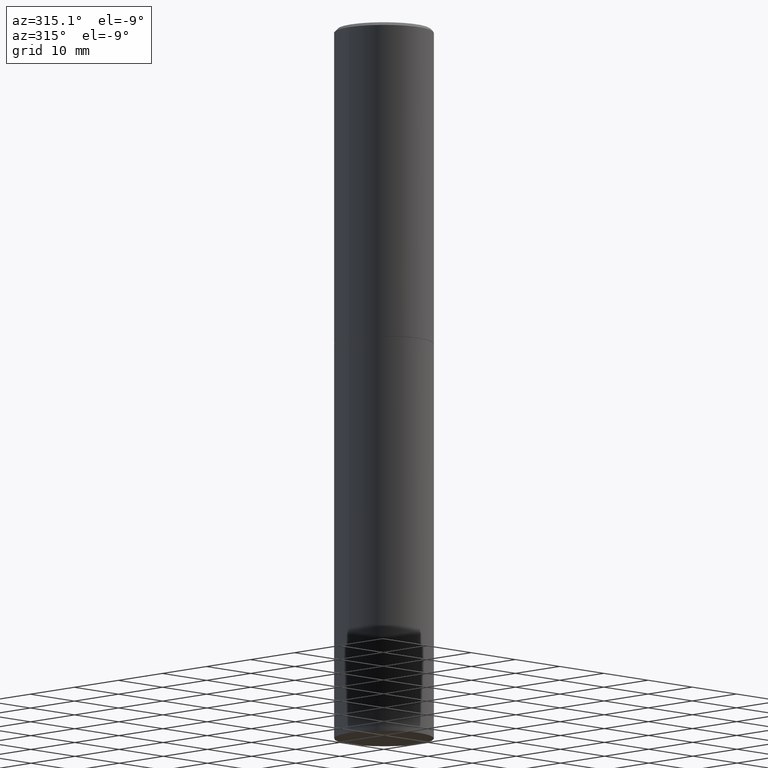
[diagram: clean part render]
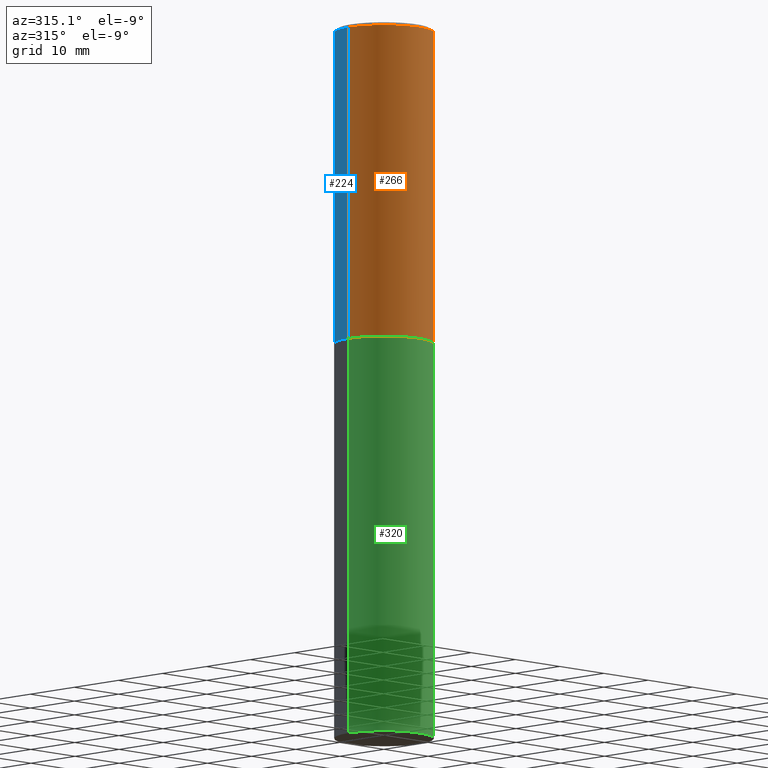
[diagram: same view with three faces highlighted in distinct colors, each labeled with its STEP entity id]
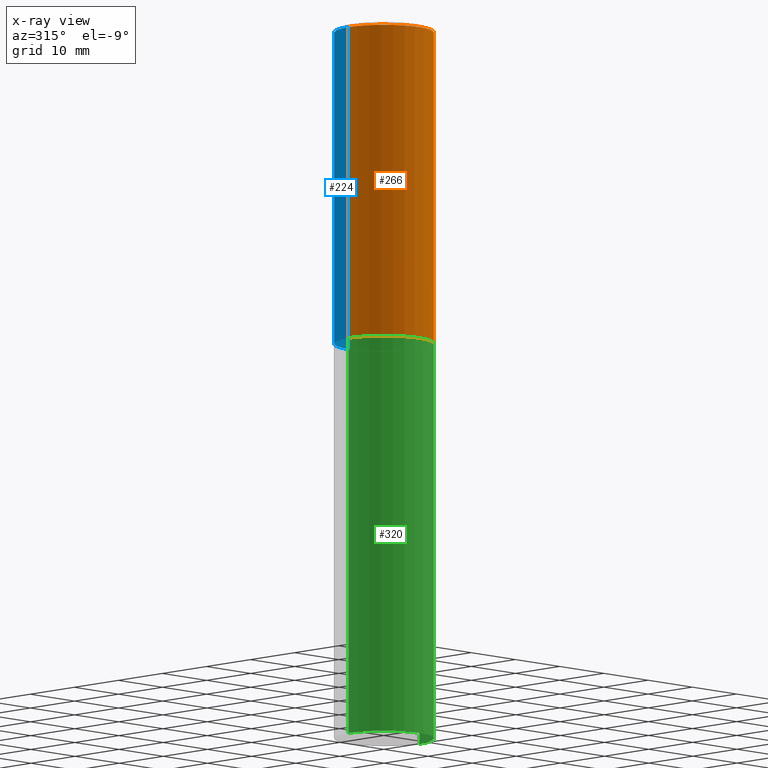
[diagram: x-ray of the same camera — body ghosted, the three highlighted faces saturated]
A machine part, auxiliary view with three faces highlighted in distinct colors.
The next image is the same camera in x-ray (body ghosted, the three faces saturated) — at least one of them is partly hidden behind the body in this view.
Their STEP definitions:

[orange] entity #266 — the highlighted cylindrical surface (partial cylindrical patch) has radius 7.9997 mm, axis along (-0, 0, 1).
#28 = VERTEX_POINT ( 'NONE', #35 ) ;
#35 = CARTESIAN_POINT ( 'NONE',  ( 0.3149500000000000077, -9.206337994261596208E-15, -2.006899999999999462 ) ) ;
#43 = DIRECTION ( 'NONE',  ( -2.445468806185136597E-29, 3.491481338843145583E-15, 1.000000000000000000 ) ) ;
#45 = DIRECTION ( 'NONE',  ( -2.445468806185136597E-29, 3.491481338843145583E-15, 1.000000000000000000 ) ) ;
#46 = ORIENTED_EDGE ( 'NONE', *, *, #227, .F. ) ;
#47 = AXIS2_PLACEMENT_3D ( 'NONE', #298, #45, #197 ) ;
#67 = VERTEX_POINT ( 'NONE', #187 ) ;
#81 = CIRCLE ( 'NONE', #216, 0.3149499999999997857 ) ;
#99 = VECTOR ( 'NONE', #221, 39.37007874015748143 ) ;
#102 = LINE ( 'NONE', #292, #332 ) ;
#114 = CARTESIAN_POINT ( 'NONE',  ( 4.907811347132949146E-29, -7.007053898924306337E-15, -2.006899999999999462 ) ) ;
#115 = CYLINDRICAL_SURFACE ( 'NONE', #47, 0.3149499999999998967 ) ;
#121 = ORIENTED_EDGE ( 'NONE', *, *, #317, .T. ) ;
#134 = DIRECTION ( 'NONE',  ( 1.000000000000000000, -6.982962677686266711E-15, 0.000000000000000000 ) ) ;
#140 = CARTESIAN_POINT ( 'NONE',  ( -0.3149499999999998967, 2.237854346276434801E-15, -1.549218606675782116E-29 ) ) ;
#142 = ORIENTED_EDGE ( 'NONE', *, *, #199, .T. ) ;
#186 = CIRCLE ( 'NONE', #261, 0.3149500000000000077 ) ;
#187 = CARTESIAN_POINT ( 'NONE',  ( 0.3149499999999997857, -2.230543471175005872E-15, -0.02000000000000006981 ) ) ;
#192 = VERTEX_POINT ( 'NONE', #355 ) ;
#197 = DIRECTION ( 'NONE',  ( 1.000000000000000000, -6.982962677686265922E-15, 4.876176775795935232E-29 ) ) ;
#199 = EDGE_CURVE ( 'NONE', #353, #28, #186, .T. ) ;
#216 = AXIS2_PLACEMENT_3D ( 'NONE', #264, #342, #134 ) ;
#221 = DIRECTION ( 'NONE',  ( -2.445468806185136877E-29, 3.491481338843145188E-15, 1.000000000000000000 ) ) ;
#227 = EDGE_CURVE ( 'NONE', #353, #192, #230, .T. ) ;
#230 = LINE ( 'NONE', #140, #99 ) ;
#235 = DIRECTION ( 'NONE',  ( -2.445468806185136877E-29, 3.491481338843145188E-15, 1.000000000000000000 ) ) ;
#243 = DIRECTION ( 'NONE',  ( 1.000000000000000000, -6.982962677686266711E-15, 0.000000000000000000 ) ) ;
#261 = AXIS2_PLACEMENT_3D ( 'NONE', #114, #43, #243 ) ;
#264 = CARTESIAN_POINT ( 'NONE',  ( 4.890937612370289799E-31, -6.982962677686315028E-17, -0.02000000000000006981 ) ) ;
#266 = ADVANCED_FACE ( 'NONE', ( #358 ), #115, .T. ) ;
#292 = CARTESIAN_POINT ( 'NONE',  ( 0.3149499999999998967, -2.199284095337288688E-15, 1.535751875536929289E-29 ) ) ;
#298 = CARTESIAN_POINT ( 'NONE',  ( 0.000000000000000000, 0.000000000000000000, 0.000000000000000000 ) ) ;
#317 = EDGE_CURVE ( 'NONE', #28, #67, #102, .T. ) ;
#321 = ORIENTED_EDGE ( 'NONE', *, *, #330, .F. ) ;
#330 = EDGE_CURVE ( 'NONE', #192, #67, #81, .T. ) ;
#332 = VECTOR ( 'NONE', #235, 39.37007874015748143 ) ;
#342 = DIRECTION ( 'NONE',  ( -2.445468806185136597E-29, 3.491481338843145583E-15, 1.000000000000000000 ) ) ;
#348 = CARTESIAN_POINT ( 'NONE',  ( -0.3149500000000000077, -1.300587416574147649E-15, -2.006899999999999462 ) ) ;
#351 = EDGE_LOOP ( 'NONE', ( #46, #142, #121, #321 ) ) ;
#353 = VERTEX_POINT ( 'NONE', #348 ) ;
#355 = CARTESIAN_POINT ( 'NONE',  ( -0.3149499999999997857, 2.129454468560425389E-15, -0.02000000000000006981 ) ) ;
#358 = FACE_OUTER_BOUND ( 'NONE', #351, .T. ) ;

[blue] entity #224 — the highlighted cylindrical surface (partial cylindrical patch) has radius 7.9997 mm, axis along (-0, 0, 1).
#28 = VERTEX_POINT ( 'NONE', #35 ) ;
#35 = CARTESIAN_POINT ( 'NONE',  ( 0.3149500000000000077, -9.206337994261596208E-15, -2.006899999999999462 ) ) ;
#59 = AXIS2_PLACEMENT_3D ( 'NONE', #343, #304, #87 ) ;
#67 = VERTEX_POINT ( 'NONE', #187 ) ;
#82 = CIRCLE ( 'NONE', #59, 0.3149500000000000077 ) ;
#87 = DIRECTION ( 'NONE',  ( 1.000000000000000000, -6.982962677686266711E-15, 0.000000000000000000 ) ) ;
#98 = ORIENTED_EDGE ( 'NONE', *, *, #227, .T. ) ;
#99 = VECTOR ( 'NONE', #221, 39.37007874015748143 ) ;
#102 = LINE ( 'NONE', #292, #332 ) ;
#106 = FACE_OUTER_BOUND ( 'NONE', #214, .T. ) ;
#109 = DIRECTION ( 'NONE',  ( -2.445468806185136597E-29, 3.491481338843145583E-15, 1.000000000000000000 ) ) ;
#123 = CIRCLE ( 'NONE', #354, 0.3149499999999997857 ) ;
#127 = ORIENTED_EDGE ( 'NONE', *, *, #260, .F. ) ;
#140 = CARTESIAN_POINT ( 'NONE',  ( -0.3149499999999998967, 2.237854346276434801E-15, -1.549218606675782116E-29 ) ) ;
#151 = EDGE_CURVE ( 'NONE', #28, #353, #82, .T. ) ;
#164 = ORIENTED_EDGE ( 'NONE', *, *, #317, .F. ) ;
#187 = CARTESIAN_POINT ( 'NONE',  ( 0.3149499999999997857, -2.230543471175005872E-15, -0.02000000000000006981 ) ) ;
#191 = DIRECTION ( 'NONE',  ( -2.445468806185136597E-29, 3.491481338843145583E-15, 1.000000000000000000 ) ) ;
#192 = VERTEX_POINT ( 'NONE', #355 ) ;
#193 = DIRECTION ( 'NONE',  ( 1.000000000000000000, -6.982962677686265922E-15, 4.876176775795935232E-29 ) ) ;
#212 = CARTESIAN_POINT ( 'NONE',  ( 0.000000000000000000, 0.000000000000000000, 0.000000000000000000 ) ) ;
#214 = EDGE_LOOP ( 'NONE', ( #277, #98, #127, #164 ) ) ;
#221 = DIRECTION ( 'NONE',  ( -2.445468806185136877E-29, 3.491481338843145188E-15, 1.000000000000000000 ) ) ;
#224 = ADVANCED_FACE ( 'NONE', ( #106 ), #300, .T. ) ;
#227 = EDGE_CURVE ( 'NONE', #353, #192, #230, .T. ) ;
#230 = LINE ( 'NONE', #140, #99 ) ;
#235 = DIRECTION ( 'NONE',  ( -2.445468806185136877E-29, 3.491481338843145188E-15, 1.000000000000000000 ) ) ;
#246 = CARTESIAN_POINT ( 'NONE',  ( 4.890937612370289799E-31, -6.982962677686315028E-17, -0.02000000000000006981 ) ) ;
#254 = AXIS2_PLACEMENT_3D ( 'NONE', #212, #109, #193 ) ;
#260 = EDGE_CURVE ( 'NONE', #67, #192, #123, .T. ) ;
#277 = ORIENTED_EDGE ( 'NONE', *, *, #151, .T. ) ;
#292 = CARTESIAN_POINT ( 'NONE',  ( 0.3149499999999998967, -2.199284095337288688E-15, 1.535751875536929289E-29 ) ) ;
#300 = CYLINDRICAL_SURFACE ( 'NONE', #254, 0.3149499999999998967 ) ;
#304 = DIRECTION ( 'NONE',  ( -2.445468806185136597E-29, 3.491481338843145583E-15, 1.000000000000000000 ) ) ;
#317 = EDGE_CURVE ( 'NONE', #28, #67, #102, .T. ) ;
#332 = VECTOR ( 'NONE', #235, 39.37007874015748143 ) ;
#343 = CARTESIAN_POINT ( 'NONE',  ( 4.907811347132949146E-29, -7.007053898924306337E-15, -2.006899999999999462 ) ) ;
#348 = CARTESIAN_POINT ( 'NONE',  ( -0.3149500000000000077, -1.300587416574147649E-15, -2.006899999999999462 ) ) ;
#353 = VERTEX_POINT ( 'NONE', #348 ) ;
#354 = AXIS2_PLACEMENT_3D ( 'NONE', #246, #191, #356 ) ;
#355 = CARTESIAN_POINT ( 'NONE',  ( -0.3149499999999997857, 2.129454468560425389E-15, -0.02000000000000006981 ) ) ;
#356 = DIRECTION ( 'NONE',  ( 1.000000000000000000, -6.982962677686266711E-15, 0.000000000000000000 ) ) ;

[green] entity #320 — the highlighted cylindrical surface (partial cylindrical patch) has radius 7.9997 mm, axis along (-0, 0, 1).
#1 = EDGE_CURVE ( 'NONE', #366, #174, #233, .T. ) ;
#2 = CARTESIAN_POINT ( 'NONE',  ( 0.3149500000000000077, -2.199284095337289871E-15, 1.535751875536930130E-29 ) ) ;
#19 = ORIENTED_EDGE ( 'NONE', *, *, #207, .F. ) ;
#21 = DIRECTION ( 'NONE',  ( -2.445468806185136597E-29, 3.491481338843145583E-15, 1.000000000000000000 ) ) ;
#34 = DIRECTION ( 'NONE',  ( -2.445468806185136597E-29, 3.491481338843145583E-15, 1.000000000000000000 ) ) ;
#38 = EDGE_CURVE ( 'NONE', #357, #174, #156, .T. ) ;
#39 = DIRECTION ( 'NONE',  ( 1.000000000000000000, -6.982962677686266711E-15, 4.876176775795936353E-29 ) ) ;
#49 = CIRCLE ( 'NONE', #147, 0.3149500000000000077 ) ;
#51 = CARTESIAN_POINT ( 'NONE',  ( 1.107210456688382298E-28, -1.580803090974622389E-14, -4.527599999999999625 ) ) ;
#69 = CYLINDRICAL_SURFACE ( 'NONE', #269, 0.3149500000000000077 ) ;
#71 = DIRECTION ( 'NONE',  ( -2.445468806185136597E-29, 3.491481338843145583E-15, 1.000000000000000000 ) ) ;
#73 = DIRECTION ( 'NONE',  ( 1.000000000000000000, -6.982962677686269866E-15, 0.000000000000000000 ) ) ;
#112 = ORIENTED_EDGE ( 'NONE', *, *, #126, .T. ) ;
#124 = AXIS2_PLACEMENT_3D ( 'NONE', #313, #71, #73 ) ;
#126 = EDGE_CURVE ( 'NONE', #167, #357, #49, .T. ) ;
#137 = DIRECTION ( 'NONE',  ( -2.445468806185136877E-29, 3.491481338843145188E-15, 1.000000000000000000 ) ) ;
#141 = CARTESIAN_POINT ( 'NONE',  ( -0.3149500000000000077, -9.171433798728249845E-15, -2.007899999999999352 ) ) ;
#144 = VECTOR ( 'NONE', #282, 39.37007874015748143 ) ;
#147 = AXIS2_PLACEMENT_3D ( 'NONE', #51, #21, #238 ) ;
#153 = VECTOR ( 'NONE', #137, 39.37007874015748143 ) ;
#156 = LINE ( 'NONE', #2, #144 ) ;
#167 = VERTEX_POINT ( 'NONE', #318 ) ;
#174 = VERTEX_POINT ( 'NONE', #241 ) ;
#195 = EDGE_LOOP ( 'NONE', ( #19, #112, #286, #311 ) ) ;
#206 = FACE_OUTER_BOUND ( 'NONE', #195, .T. ) ;
#207 = EDGE_CURVE ( 'NONE', #167, #366, #220, .T. ) ;
#220 = LINE ( 'NONE', #294, #153 ) ;
#233 = CIRCLE ( 'NONE', #124, 0.3149500000000000077 ) ;
#238 = DIRECTION ( 'NONE',  ( 1.000000000000000000, -6.982962677686269866E-15, 0.000000000000000000 ) ) ;
#241 = CARTESIAN_POINT ( 'NONE',  ( 0.3149500000000000077, -9.209829475600440793E-15, -2.007899999999999352 ) ) ;
#263 = CARTESIAN_POINT ( 'NONE',  ( 0.3149500000000000077, -1.800731500508351534E-14, -4.527599999999999625 ) ) ;
#269 = AXIS2_PLACEMENT_3D ( 'NONE', #288, #34, #39 ) ;
#282 = DIRECTION ( 'NONE',  ( -2.445468806185136877E-29, 3.491481338843145188E-15, 1.000000000000000000 ) ) ;
#286 = ORIENTED_EDGE ( 'NONE', *, *, #38, .T. ) ;
#288 = CARTESIAN_POINT ( 'NONE',  ( 0.000000000000000000, 0.000000000000000000, 0.000000000000000000 ) ) ;
#294 = CARTESIAN_POINT ( 'NONE',  ( -0.3149500000000000077, 2.237854346276435590E-15, -1.549218606675782676E-29 ) ) ;
#311 = ORIENTED_EDGE ( 'NONE', *, *, #1, .F. ) ;
#313 = CARTESIAN_POINT ( 'NONE',  ( 4.910256815939134188E-29, -7.010545380263150133E-15, -2.007899999999999352 ) ) ;
#318 = CARTESIAN_POINT ( 'NONE',  ( -0.3149500000000000077, -9.171433798728249845E-15, -4.527599999999999625 ) ) ;
#320 = ADVANCED_FACE ( 'NONE', ( #206 ), #69, .T. ) ;
#357 = VERTEX_POINT ( 'NONE', #263 ) ;
#366 = VERTEX_POINT ( 'NONE', #141 ) ;